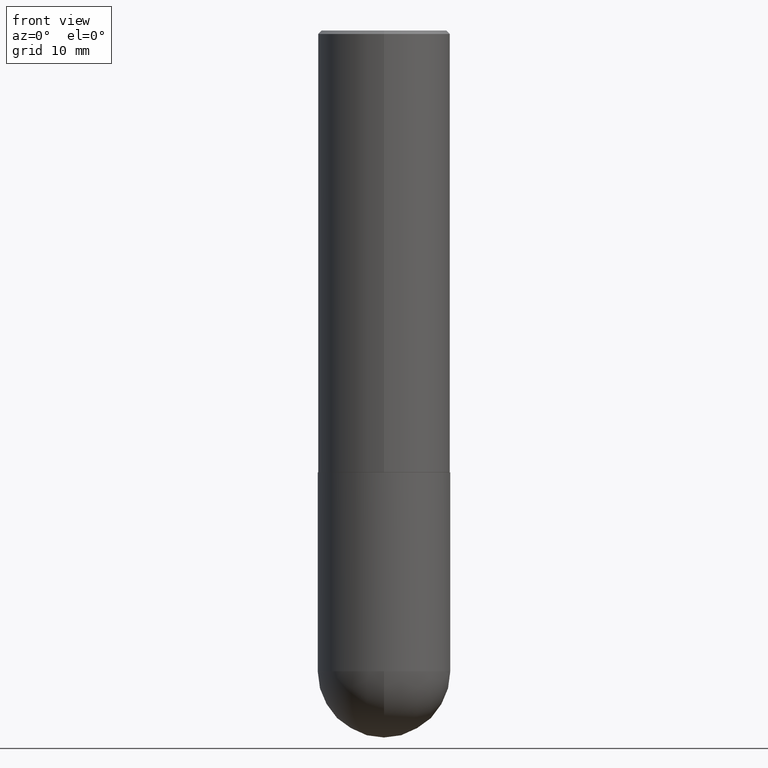
[diagram: clean part render]
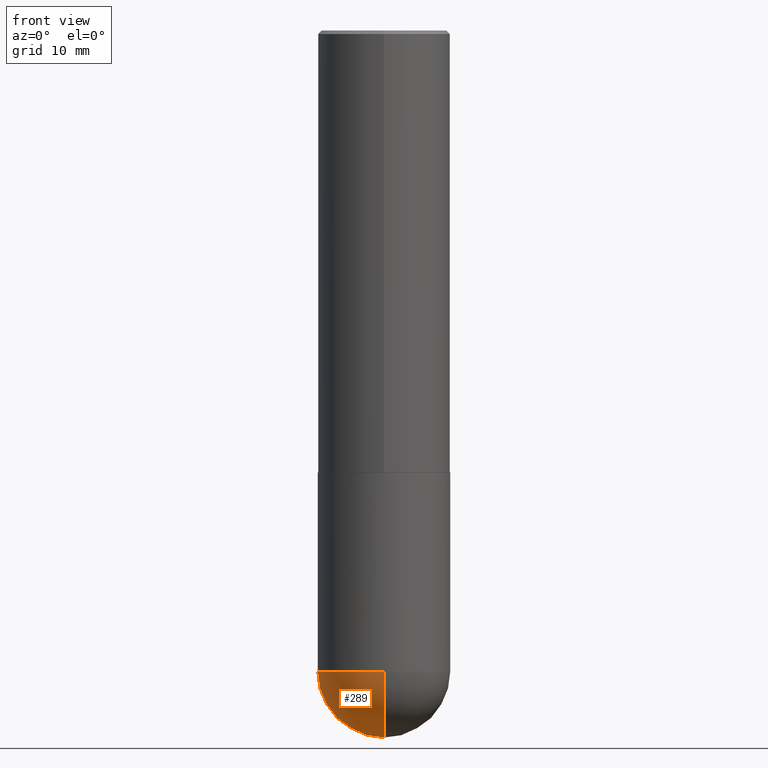
[diagram: same view with one face highlighted and labeled with its STEP entity id]
A machine part, front view. The second image highlights one B-rep face of the part: STEP entity #289.
In plain terms, the highlighted spherical surface has radius 9.525 mm.
Its self-contained STEP definition (entity closure, byte-faithful):
#4 = DIRECTION ( 'NONE',  ( 1.000000000000000000, -6.982962677686265922E-15, 4.883557194083112340E-29 ) ) ;
#5 = DIRECTION ( 'NONE',  ( -1.000000000000000000, 6.982962677686266711E-15, -4.883557194083113462E-29 ) ) ;
#14 = VERTEX_POINT ( 'NONE', #249 ) ;
#33 = DIRECTION ( 'NONE',  ( 6.982962677686265922E-15, 1.000000000000000000, 0.000000000000000000 ) ) ;
#63 = EDGE_CURVE ( 'NONE', #14, #398, #313, .T. ) ;
#66 = AXIS2_PLACEMENT_3D ( 'NONE', #213, #80, #349 ) ;
#68 = AXIS2_PLACEMENT_3D ( 'NONE', #94, #5, #127 ) ;
#71 = CARTESIAN_POINT ( 'NONE',  ( -0.3750000000000001110, -8.028126341106758858E-15, -3.624999999999999556 ) ) ;
#73 = CIRCLE ( 'NONE', #151, 0.3750000000000003886 ) ;
#80 = DIRECTION ( 'NONE',  ( -1.000000000000000000, 7.105427357601001070E-15, -4.926315508542082329E-29 ) ) ;
#88 = CIRCLE ( 'NONE', #400, 0.3750000000000001110 ) ;
#89 = CARTESIAN_POINT ( 'NONE',  ( 8.864824422421120163E-29, -1.265661985330640259E-14, -3.624999999999999556 ) ) ;
#94 = CARTESIAN_POINT ( 'NONE',  ( 8.533704644507233916E-29, -1.313080222144645289E-14, -3.624999999999999556 ) ) ;
#95 = EDGE_CURVE ( 'NONE', #98, #332, #173, .T. ) ;
#98 = VERTEX_POINT ( 'NONE', #144 ) ;
#125 = FACE_OUTER_BOUND ( 'NONE', #140, .T. ) ;
#127 = DIRECTION ( 'NONE',  ( 6.982962677686266711E-15, 1.000000000000000000, -2.913971193241878005E-15 ) ) ;
#136 = ORIENTED_EDGE ( 'NONE', *, *, #95, .F. ) ;
#140 = EDGE_LOOP ( 'NONE', ( #404, #410, #337, #136 ) ) ;
#144 = CARTESIAN_POINT ( 'NONE',  ( 2.618611004132438763E-15, 0.3749999999999873990, -3.625000000000000888 ) ) ;
#151 = AXIS2_PLACEMENT_3D ( 'NONE', #154, #4, #33 ) ;
#152 = DIRECTION ( 'NONE',  ( -2.445468806185136597E-29, 3.491481338843145583E-15, 1.000000000000000000 ) ) ;
#154 = CARTESIAN_POINT ( 'NONE',  ( 8.533704644507233916E-29, -1.313080222144645289E-14, -3.624999999999999556 ) ) ;
#173 = CIRCLE ( 'NONE', #327, 0.3750000000000001110 ) ;
#213 = CARTESIAN_POINT ( 'NONE',  ( 8.533704644507233916E-29, -1.313080222144645289E-14, -3.624999999999999556 ) ) ;
#214 = EDGE_CURVE ( 'NONE', #332, #398, #88, .T. ) ;
#249 = CARTESIAN_POINT ( 'NONE',  ( 9.466789814748773816E-29, -1.441714559602862136E-14, -4.000000000000000000 ) ) ;
#258 = SPHERICAL_SURFACE ( 'NONE', #68, 0.3750000000000003886 ) ;
#273 = DIRECTION ( 'NONE',  ( 1.000000000000000000, -6.982962677686265922E-15, 0.000000000000000000 ) ) ;
#277 = EDGE_CURVE ( 'NONE', #14, #98, #73, .T. ) ;
#281 = CARTESIAN_POINT ( 'NONE',  ( 8.864824422421120163E-29, -1.265661985330640259E-14, -3.624999999999999556 ) ) ;
#289 = ADVANCED_FACE ( 'NONE', ( #125 ), #258, .T. ) ;
#301 = DIRECTION ( 'NONE',  ( -2.445468806185136597E-29, 3.491481338843145583E-15, 1.000000000000000000 ) ) ;
#313 = CIRCLE ( 'NONE', #66, 0.3750000000000003886 ) ;
#319 = DIRECTION ( 'NONE',  ( 1.000000000000000000, -6.982962677686265922E-15, 0.000000000000000000 ) ) ;
#327 = AXIS2_PLACEMENT_3D ( 'NONE', #281, #301, #273 ) ;
#328 = CARTESIAN_POINT ( 'NONE',  ( -2.664535259100290106E-15, -0.3750000000000131006, -3.624999999999998668 ) ) ;
#332 = VERTEX_POINT ( 'NONE', #71 ) ;
#337 = ORIENTED_EDGE ( 'NONE', *, *, #214, .F. ) ;
#349 = DIRECTION ( 'NONE',  ( -7.105427357600999492E-15, -1.000000000000000000, 0.000000000000000000 ) ) ;
#398 = VERTEX_POINT ( 'NONE', #328 ) ;
#400 = AXIS2_PLACEMENT_3D ( 'NONE', #89, #152, #319 ) ;
#404 = ORIENTED_EDGE ( 'NONE', *, *, #277, .F. ) ;
#410 = ORIENTED_EDGE ( 'NONE', *, *, #63, .T. ) ;